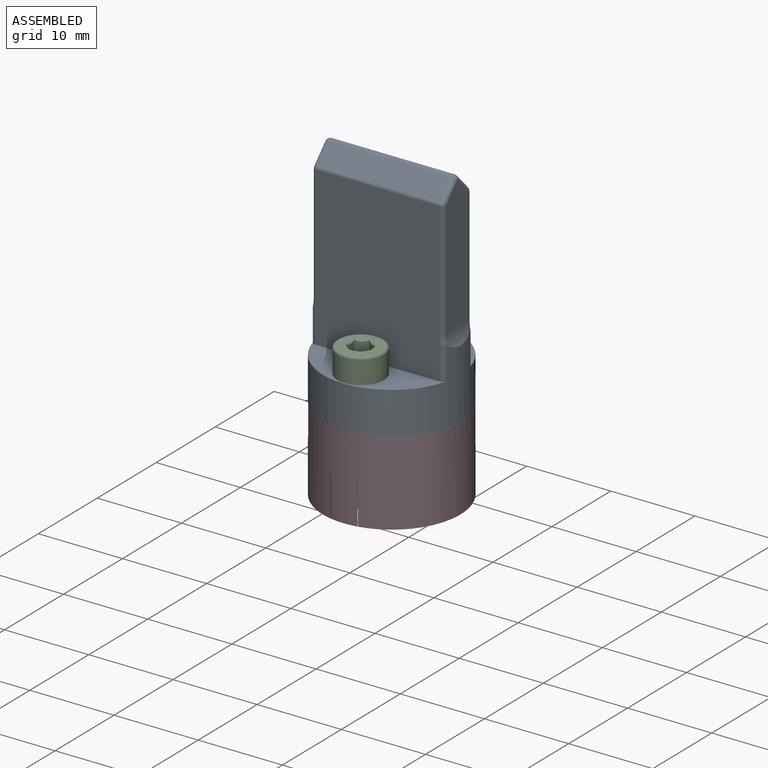
[diagram: assembled view]
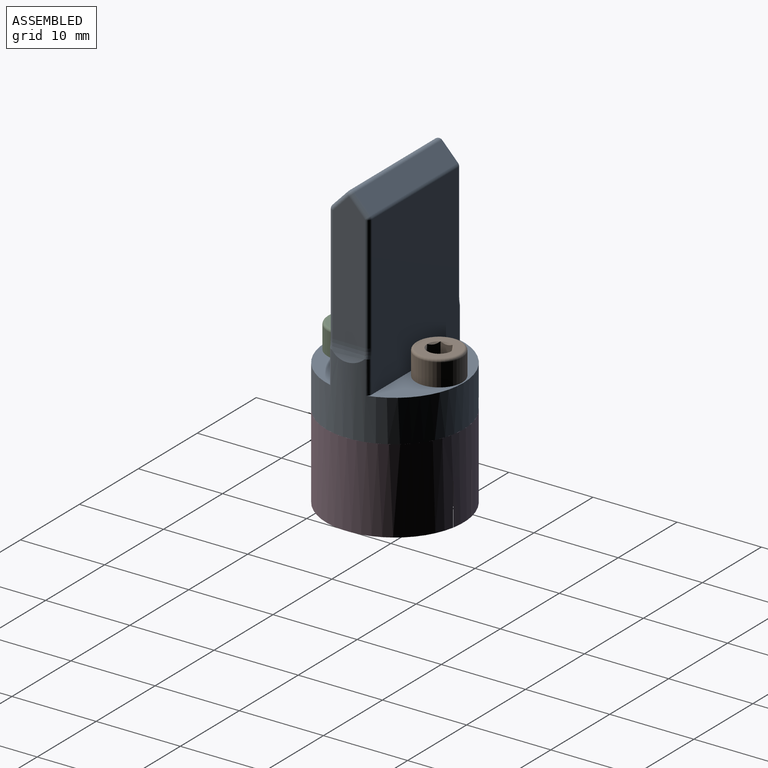
[diagram: assembled view, second angle]
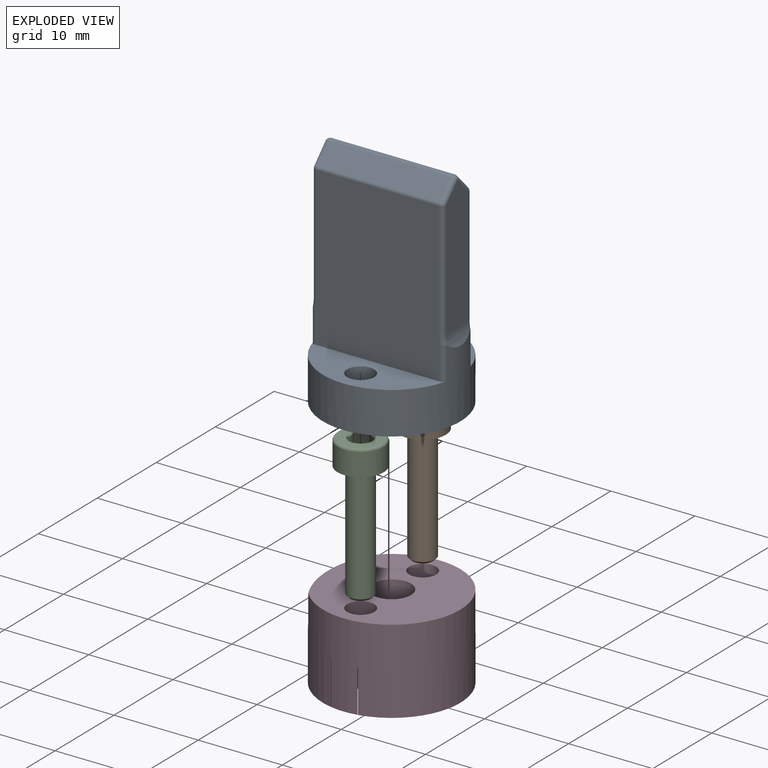
[diagram: exploded view]
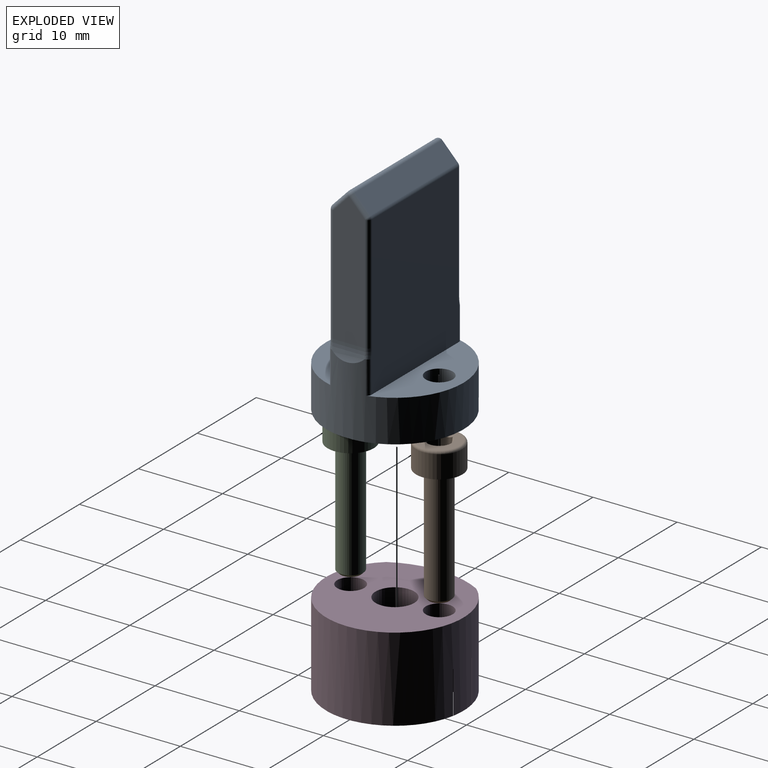
[diagram: exploded view, second angle]
ASSEMBLY  parts=4 mates=3
PART A: 48 faces, bbox 16.3x16.3x26.3 mm
  f0: plane 24x13.8mm, normal (0,-1,0), area 314.4mm2, adj f1,f3,f4,f7,f19,f20
  f1: plane 24x3mm, normal (-1,0,0), area 72mm2, adj f0,f2,f4,f7
  f2: plane 24x13.8mm, normal (0,1,0), area 314.4mm2, adj f1,f3,f4,f7,f17,f18
  f3: plane 24x3mm, normal (1,0,0), area 72mm2, adj f0,f2,f4,f7
  f4: plane 13.8x3mm, normal (0,0,-1), area 41.4mm2, adj f0,f1,f2,f3
  f5: plane 15.81x6.14mm, normal (0,0,1), area 58mm2, adj f6,f11,f22,f32,f47
  f6: cylinder r=8.16mm len=16.32mm, axis (0,0,1), area 284mm2, adj f5,f7,f8,f15,f16,f23,f24,f25
  f7: plane 16.32x16.32mm, normal (0,0,-1), area 148.3mm2, adj f0,f1,f2,f3,f6,f18,f19,f21
  f8: plane 15.81x6.14mm, normal (0,0,1), area 58mm2, adj f6,f13,f21,f23,f25
  f9: plane 14.6x1.98mm, normal (0,-0.72,0.69), area 40.1mm2, adj f30,f31,f36,f37
  f10: plane 14.6x1.98mm, normal (0,0.72,0.69), area 40.1mm2, adj f37,f38,f42,f43
  f11: plane 18.8x14.84mm, normal (0,1,0), area 275.5mm2, adj f5,f32,f35,f39,f43,f45,f46,f47
  f12: plane 15.78x3.8mm, normal (-1,0,0), area 56.2mm2, adj f15,f26,f31,f38,f39
  f13: plane 18.8x14.84mm, normal (0,-1,0), area 275.5mm2, adj f8,f23,f24,f25,f26,f27,f29,f30
  f14: plane 15.78x3.8mm, normal (1,0,0), area 56.2mm2, adj f16,f29,f36,f42,f45
  f15: cylinder r=5mm len=3.8mm, axis (0,1,0), area 6.4mm2, adj f6,f12,f24,f35
  f16: cylinder r=5mm len=3.8mm, axis (0,-1,0), area 6.4mm2, adj f6,f14,f27,f46
  f17: plane 3.35x0.75mm, normal (0,0,-1), area 1.7mm2, adj f2,f18
  f18: cylinder r=2.25mm len=5mm, axis (0,0,-1), area 18.9mm2, adj f2,f7,f17
  f19: cylinder r=2.25mm len=5mm, axis (0,0,-1), area 18.9mm2, adj f0,f7,f20
  f20: plane 3.35x0.75mm, normal (0,0,-1), area 1.7mm2, adj f0,f19
  f21: cylinder r=1.6mm len=5mm, axis (0,0,-1), area 50.3mm2, adj f7,f8
  f22: cylinder r=1.6mm len=5mm, axis (0,0,-1), area 50.3mm2, adj f5,f7
  f23: cylinder r=0.5mm len=3.9mm, axis (0,0,1), area 2.6mm2, adj f6,f8,f13,f24
  f24: torus R=5.5mm, axis (0,-1,0), area 0.9mm2, adj f6,f13,f15,f23,f26
  f25: cylinder r=0.5mm len=3.9mm, axis (0,0,1), area 2.6mm2, adj f6,f8,f13,f27
  f26: cylinder r=0.5mm len=13.8mm, axis (0,0,1), area 10.8mm2, adj f12,f13,f24,f28
  f27: torus R=5.5mm, axis (0,-1,0), area 0.9mm2, adj f6,f13,f16,f25,f29
  f28: sphere r=0.5mm, area 0.2mm2, adj f26,f30,f31
  f29: cylinder r=0.5mm len=13.8mm, axis (0,0,-1), area 10.8mm2, adj f13,f14,f27,f33
  f30: cylinder r=0.5mm len=14.6mm, axis (1,0,0), area 5.6mm2, adj f9,f13,f28,f33
  f31: cylinder r=0.5mm len=2.33mm, axis (0,-0.69,-0.72), area 2.2mm2, adj f9,f12,f28,f34
  f32: cylinder r=0.5mm len=3.9mm, axis (0,0,1), area 2.6mm2, adj f5,f6,f11,f35
  f33: sphere r=0.5mm, area 0.2mm2, adj f29,f30,f36
  f34: sphere r=0.5mm, area 0.4mm2, adj f31,f37,f38
  f35: torus R=5.5mm, axis (0,-1,0), area 0.9mm2, adj f6,f11,f15,f32,f39
  f36: cylinder r=0.5mm len=2.33mm, axis (0,0.69,0.72), area 2.2mm2, adj f9,f14,f33,f40
  f37: cylinder r=0.5mm len=14.6mm, axis (-1,0,0), area 11.8mm2, adj f9,f10,f34,f40
  f38: cylinder r=0.5mm len=2.33mm, axis (0,-0.69,0.72), area 2.2mm2, adj f10,f12,f34,f41
  f39: cylinder r=0.5mm len=13.8mm, axis (0,0,-1), area 10.8mm2, adj f11,f12,f35,f41
  f40: sphere r=0.5mm, area 0.4mm2, adj f36,f37,f42
  f41: sphere r=0.5mm, area 0.2mm2, adj f38,f39,f43
  f42: cylinder r=0.5mm len=2.33mm, axis (0,0.69,-0.72), area 2.2mm2, adj f10,f14,f40,f44
  f43: cylinder r=0.5mm len=14.6mm, axis (-1,0,0), area 5.6mm2, adj f10,f11,f41,f44
  f44: sphere r=0.5mm, area 0.2mm2, adj f42,f43,f45
  f45: cylinder r=0.5mm len=13.8mm, axis (0,0,1), area 10.8mm2, adj f11,f14,f44,f46
  f46: torus R=5.5mm, axis (0,-1,0), area 0.9mm2, adj f6,f11,f16,f45,f47
  f47: cylinder r=0.5mm len=3.9mm, axis (0,0,1), area 2.6mm2, adj f5,f6,f11,f46
PART B: 24 faces, bbox 17x6x6 mm
  f0: cone r=0.6mm half-angle=60deg, axis (-1,0,0), area 5.1mm2, adj f14
  f1: torus R=2.45mm, axis (-1,0,0), area 7.8mm2, adj f2,f15
  f2: cylinder r=2.75mm len=5.5mm, axis (-1,0,0), area 46.7mm2, adj f1,f22
  f3: torus R=1.8mm, axis (-1,0,0), area 1.2mm2, adj f4,f22
  f4: cone r=1.61mm half-angle=26deg, axis (-1,0,0), area 4.6mm2, adj f3,f5
  f5: torus R=1.6mm, axis (-1,0,0), area 0.4mm2, adj f4,f6
  f6: cylinder r=1.5mm len=13.18mm, axis (-1,0,0), area 124.3mm2, adj f5,f7
  f7: cone r=1.35mm half-angle=45deg, axis (-1,0,0), area 3.7mm2, adj f6,f21
  f8: plane 1.85x1.44mm, normal (0,0,1), area 2.5mm2, adj f9,f12,f14,f15,f16
  f9: plane 1.85x1.25mm, normal (0,-0.87,0.5), area 2.5mm2, adj f8,f10,f14,f15,f17
  f10: plane 1.85x1.25mm, normal (0,-0.87,-0.5), area 2.5mm2, adj f9,f13,f14,f15,f18
  f11: plane 1.85x1.25mm, normal (0,0.87,-0.5), area 2.5mm2, adj f12,f13,f14,f15,f20
  f12: plane 1.85x1.25mm, normal (0,0.87,0.5), area 2.5mm2, adj f8,f11,f14,f15,f23
  f13: plane 1.85x1.44mm, normal (0,0,-1), area 2.5mm2, adj f10,f11,f14,f15,f19
  f14: plane 2.89x2.5mm, normal (-1,0,0), area 1mm2, adj f0,f8,f9,f10,f11,f12,f13
  f15: plane 4.9x4.9mm, normal (-1,0,0), area 12.4mm2, adj f1,f8,f9,f10,f11,f12,f13,f16
  f16: cone r=1.31mm half-angle=45deg, axis (-1,0,0), area 0.2mm2, adj f8,f15
  f17: cone r=1.31mm half-angle=45deg, axis (-1,0,0), area 0.2mm2, adj f9,f15
  f18: cone r=1.31mm half-angle=45deg, axis (-1,0,0), area 0.2mm2, adj f10,f15
  f19: cone r=1.31mm half-angle=45deg, axis (-1,0,0), area 0.2mm2, adj f13,f15
  f20: cone r=1.31mm half-angle=45deg, axis (-1,0,0), area 0.2mm2, adj f11,f15
  f21: plane 2.39x2.39mm, normal (1,0,0), area 4.5mm2, adj f7
  f22: plane 5.5x5.5mm, normal (1,0,0), area 13.6mm2, adj f2,f3
  f23: cone r=1.31mm half-angle=45deg, axis (-1,0,0), area 0.2mm2, adj f12,f15
PART C: same geometry as B
PART D: 24 faces, bbox 16.3x16.3x10 mm
  f0: cylinder r=1.6mm len=5mm, axis (0,0,-1), area 50.3mm2, adj f7,f14
  f1: cylinder r=1.6mm len=5mm, axis (0,0,-1), area 50.3mm2, adj f7,f21
  f2: plane 3.12x0.15mm, normal (0,0,1), area 0.3mm2, adj f5,f15
  f3: plane 3.12x0.15mm, normal (0,0,1), area 0.3mm2, adj f5,f8
  f4: cylinder r=2.3mm len=10mm, axis (0,0,-1), area 144.5mm2, adj f6,f7
  f5: cylinder r=8.16mm len=16.32mm, axis (0,0,-1), area 465.4mm2, adj f2,f3,f6,f7,f8,f9,f13,f14
  f6: plane 16.32x16.01mm, normal (0,0,1), area 139.6mm2, adj f4,f5,f9,f10,f11,f12,f13,f16
  f7: plane 16.32x15.71mm, normal (0,0,-1), area 171.9mm2, adj f0,f1,f4,f5,f22
  f8: plane 5x3.12mm, normal (0,-1,0), area 15.6mm2, adj f3,f5,f14
  f9: plane 5x2.74mm, normal (0.87,-0.5,0), area 15.8mm2, adj f5,f6,f10,f14
  f10: plane 5x2.75mm, normal (0.87,0.5,0), area 15.9mm2, adj f6,f9,f11,f14
  f11: plane 5x3.18mm, normal (0,1,0), area 15.9mm2, adj f6,f10,f12,f14
  f12: plane 5x2.75mm, normal (-0.87,0.5,0), area 15.9mm2, adj f6,f11,f13,f14
  f13: plane 5x2.74mm, normal (-0.87,-0.5,0), area 15.8mm2, adj f5,f6,f12,f14
  f14: plane 6.35x5.5mm, normal (0,0,1), area 18.2mm2, adj f0,f5,f8,f9,f10,f11,f12,f13
  f15: plane 5x3.12mm, normal (0,1,0), area 15.6mm2, adj f2,f5,f21
  f16: plane 5x2.74mm, normal (-0.87,0.5,0), area 15.8mm2, adj f5,f6,f17,f21
  f17: plane 5x2.75mm, normal (-0.87,-0.5,0), area 15.9mm2, adj f6,f16,f18,f21
  f18: plane 5x3.18mm, normal (0,-1,0), area 15.9mm2, adj f6,f17,f19,f21
  f19: plane 5x2.75mm, normal (0.87,-0.5,0), area 15.9mm2, adj f6,f18,f20,f21
  f20: plane 5x2.74mm, normal (0.87,0.5,0), area 15.8mm2, adj f5,f6,f19,f21
  f21: plane 6.35x5.5mm, normal (0,0,1), area 18.2mm2, adj f1,f5,f15,f16,f17,f18,f19,f20
  f22: cylinder r=11mm len=10.7mm, axis (0,0,-1), area 44.7mm2, adj f5,f7,f23
  f23: plane 10.7x2mm, normal (0,0,-1), area 4.6mm2, adj f5,f22
PLACE A t=(-11.39,0.52,2.4)mm
PLACE B rot(axis=(0.71,0,-0.71),180deg) t=(-11.39,5.79,2.4)mm
PLACE C rot(axis=(0.71,0,-0.71),180deg) t=(-11.39,-4.74,2.4)mm
PLACE D rot(axis=(1,0,0),180deg) t=(-11.39,0.52,-2.6)mm
MATE fastened C.f0 <-> A.f21  axis (0,0,-1) through (-11.39,-4.74,2.4)mm
MATE fastened D.f1 <-> A.f22  axis (0,0,1) through (-11.39,5.79,-2.6)mm
MATE fastened B.f0 <-> A.f22  axis (0,0,-1) through (-11.39,5.79,2.4)mm
